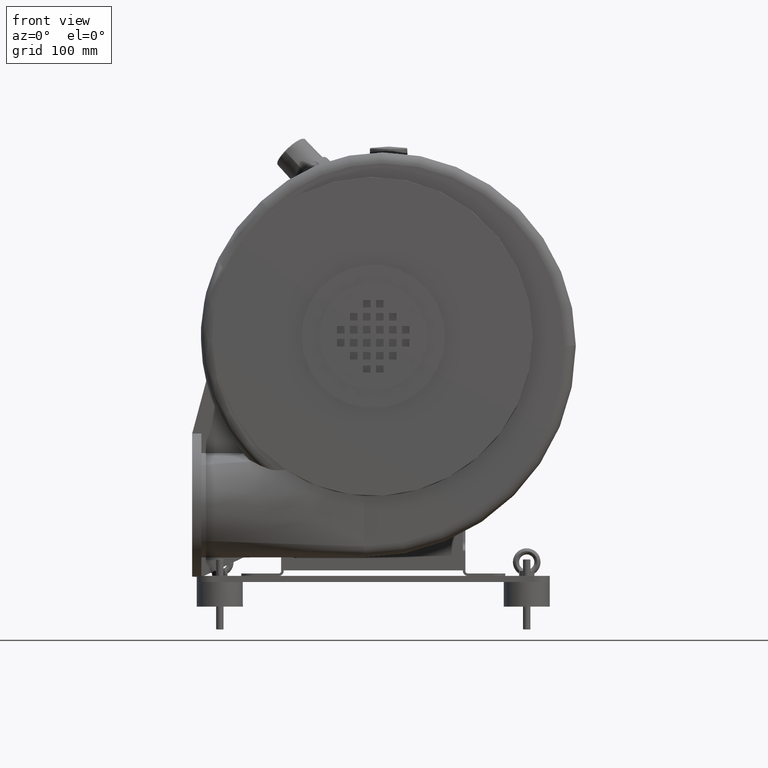
[diagram: clean part render]
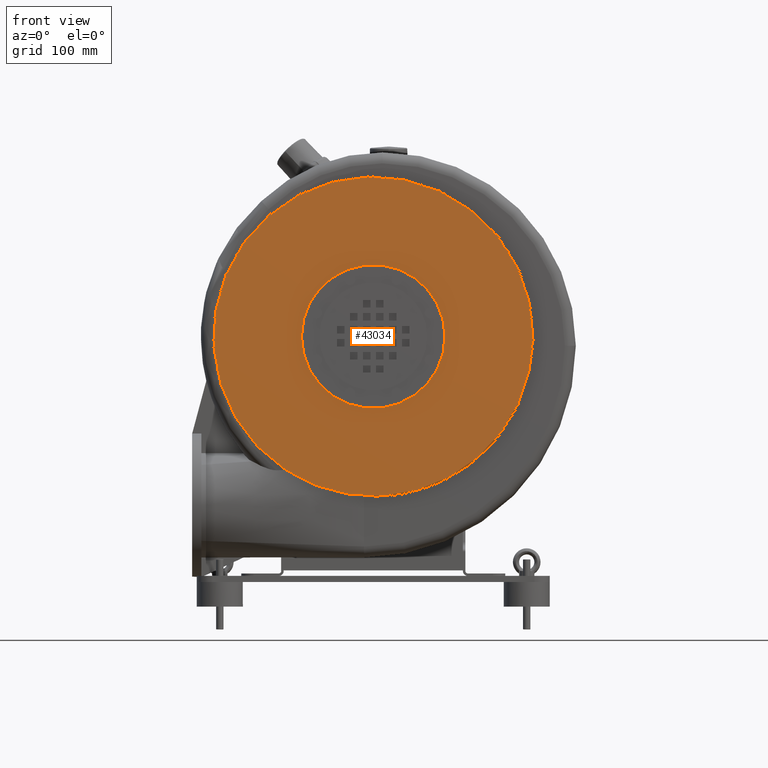
[diagram: same view with one face highlighted and labeled with its STEP entity id]
A machine part, front view. The second image highlights one B-rep face of the part: STEP entity #43034.
In plain terms, the highlighted planar face has unit normal (0, 1, 0).
Its self-contained STEP definition (entity closure, byte-faithful):
#42912=CARTESIAN_POINT('',(117.00000000000662,-271.5000000000058,400.00000000001813));
#42913=VERTEX_POINT('',#42912);
#42914=CARTESIAN_POINT('',(6.612488E-012,-271.50000000000387,400.00000000001808));
#42915=DIRECTION('',(0.0,1.0,0.0));
#42916=DIRECTION('',(-1.0,0.0,0.0));
#42917=AXIS2_PLACEMENT_3D('',#42914,#42915,#42916);
#42918=CIRCLE('',#42917,117.00000000000001);
#42919=EDGE_CURVE('',#42913,#42913,#42918,.T.);
#42987=CARTESIAN_POINT('',(260.00000000000665,-271.50000000000824,400.00000000001819));
#42988=VERTEX_POINT('',#42987);
#42989=CARTESIAN_POINT('',(6.612488E-012,-271.50000000000387,400.00000000001808));
#42990=DIRECTION('',(0.0,1.0,0.0));
#42991=DIRECTION('',(-1.0,0.0,0.0));
#42992=AXIS2_PLACEMENT_3D('',#42989,#42990,#42991);
#42993=CIRCLE('',#42992,260.0);
#42994=EDGE_CURVE('',#42988,#42988,#42993,.T.);
#43023=CARTESIAN_POINT('',(6.612488E-012,-271.50000000000387,400.00000000001808));
#43024=DIRECTION('',(0.0,1.0,0.0));
#43025=DIRECTION('',(-1.0,0.0,0.0));
#43026=AXIS2_PLACEMENT_3D('',#43023,#43024,#43025);
#43027=PLANE('',#43026);
#43028=ORIENTED_EDGE('',*,*,#42994,.F.);
#43029=EDGE_LOOP('',(#43028));
#43030=FACE_OUTER_BOUND('',#43029,.T.);
#43031=ORIENTED_EDGE('',*,*,#42919,.T.);
#43032=EDGE_LOOP('',(#43031));
#43033=FACE_BOUND('',#43032,.T.);
#43034=ADVANCED_FACE('',(#43030,#43033),#43027,.F.);